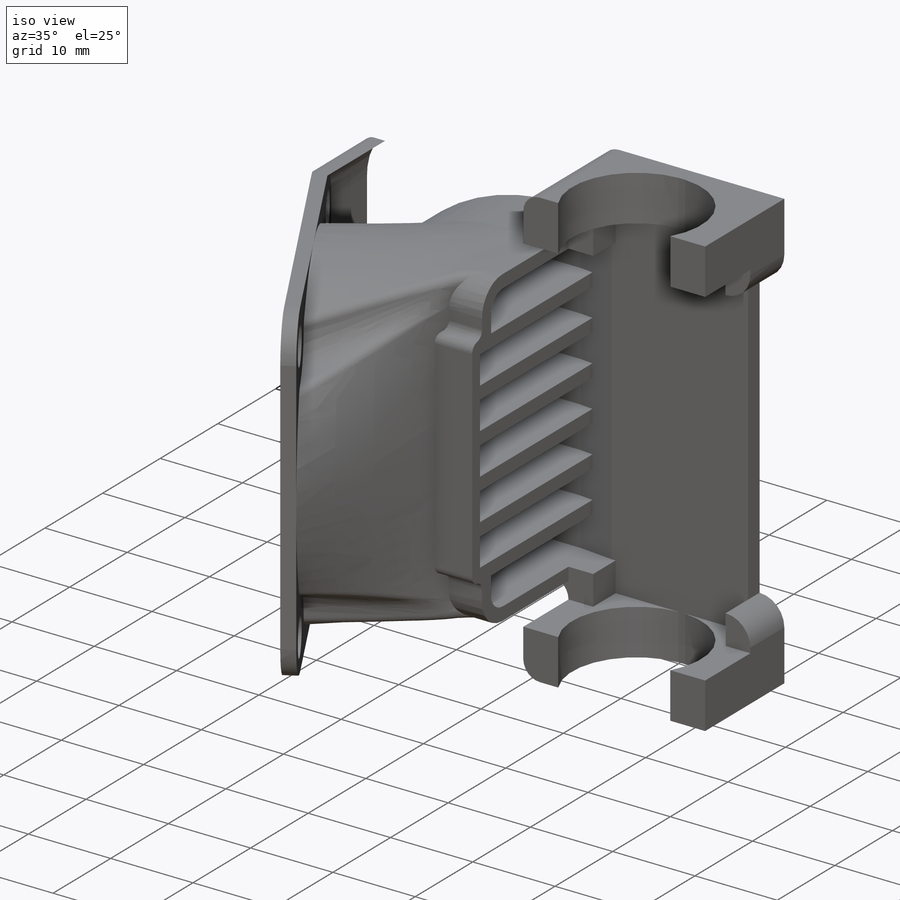
[diagram: iso view]
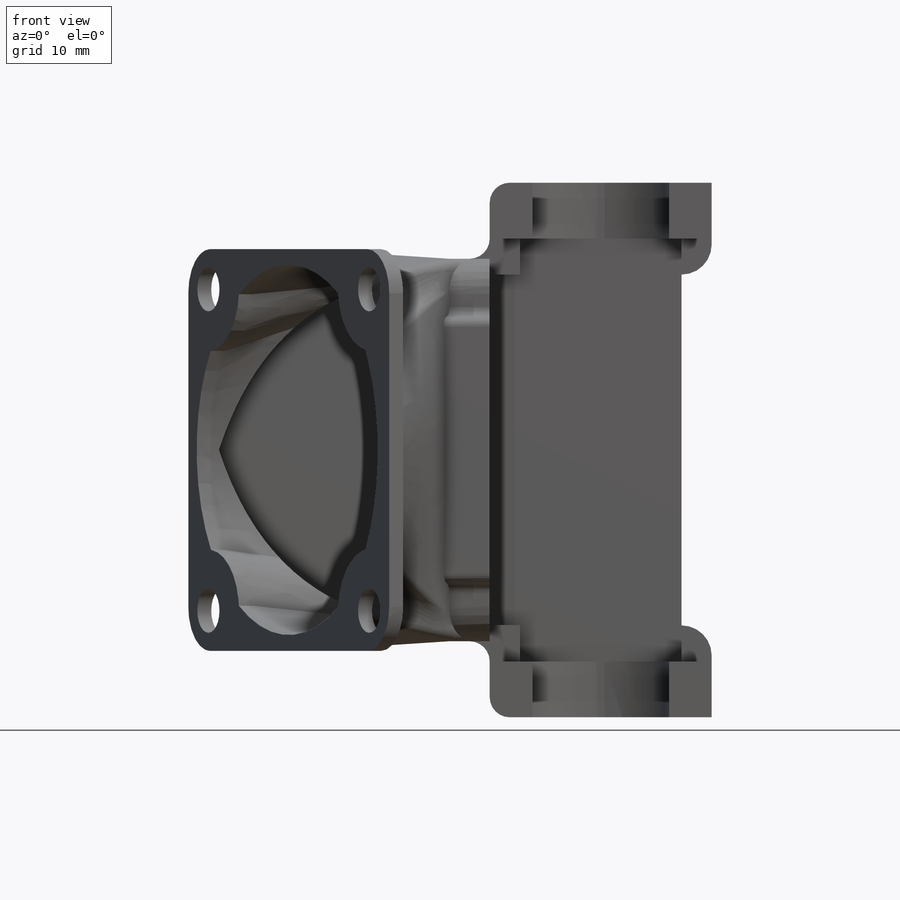
[diagram: front view]
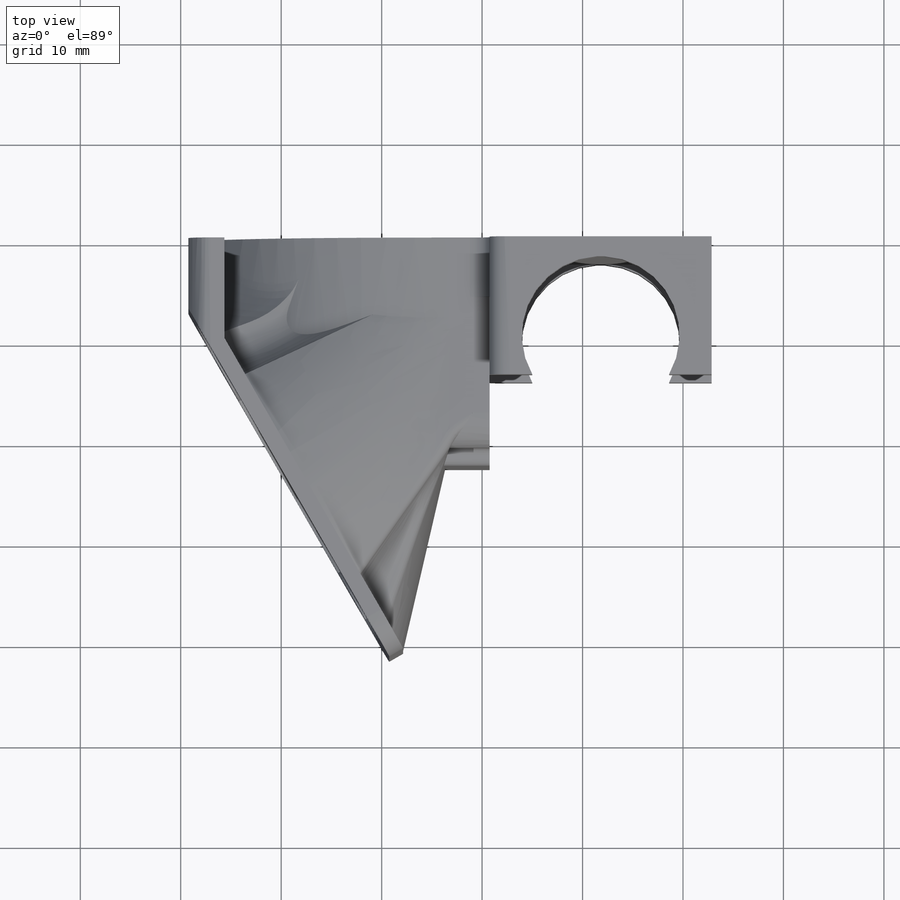
[diagram: top view]
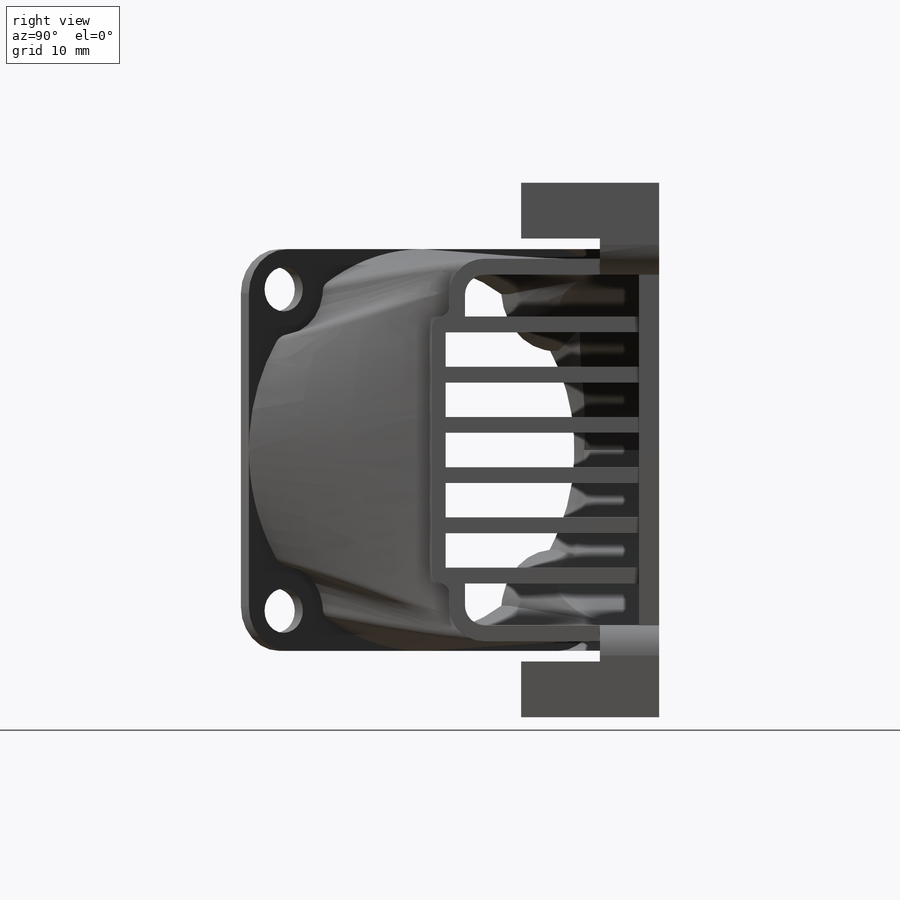
[diagram: right view]
SOLIDWORKS PART (.sldprt)
format: sldprt  version: not decoded by parser v0  size: 1,718,272 bytes
history: native  units: mm
features: sketch x23, extrude x12, fillet x11, cut_extrude x7, plane x2, material x1, shell x1, chamfer x1 (+11 scaffold rows collapsed)
feature tree (69):
  scaffold x11  (default folders/planes/origin — collapsed)
  material  "Material <not specified>"
  sketch  "Sketch1"  dims[D1=53.22mm D2=~56.98675mm]
  extrude  "Boss-Extrude1"  Depth=2mm
  sketch  "Sketch3"  dims[D1=0.0mm D2=0.0mm D3=11.75mm]
  extrude  "Boss-Extrude2"  Depth=5.55mm
  sketch  "Sketch4"
  extrude  "Boss-Extrude3"  Depth=5.55mm
  sketch  "Sketch6"  dims[c1.D1=~5.790595mm c1.D3=3.6mm c2.D1=3.0mm c2.D2=3.0mm]
  extrude  "Boss-Extrude5"  Depth=3.9mm
  plane  "Plane1"
  sketch  "Sketch15"
  sketch  "Sketch16"  dims[D1=0.0mm]
  extrude  "Boss-Extrude6"  Depth=1.598mm
  sketch  "Sketch21"  dims[D1=0.0mm]
  cut_extrude  "Cut-Extrude4"  [1 undecoded]
  sketch  "Sketch17"  dims[c1.D1=1.02mm c1.D2=1.02mm c2.D1=1.5776mm c2.D2=1.5776mm c3.D1=1.02mm c3.D2=1.02mm c3.D3=1.5776mm c3.D4=1.5776mm]
  extrude  "Boss-Extrude8"  Depth=4mm
  sketch  "Sketch18"  dims[D1=~4.338845mm]
  sketch  "Sketch22"  dims[D1=0.0mm]
  sketch  "Sketch25"  dims[D1=0.0mm]
  cut_extrude  "Cut-Extrude6"  [1 undecoded]
  sketch  "Sketch29"  dims[c1.D1=0.0mm c1.D2=0.0mm c2.D1=0.0mm]
  extrude  "Boss-Extrude12"  Depth=14mm
  shell  "Shell8"  Thickness=1.5776mm
  sketch  "Sketch31"  dims[D1=~2.622309mm]
  sketch  "Sketch34"
  cut_extrude  "Cut-Extrude12"  [1 undecoded]
  sketch  "Sketch35"  dims[D1=0.0mm D2=1.5776mm]
  extrude  "Boss-Extrude13"  [1 undecoded]
  sketch  "Sketch36"  dims[D1=0.0mm]
  cut_extrude  "Cut-Extrude13"  Depth=6mm
  fillet  "Fillet5"  Radius=5mm
  sketch  "Sketch37"  dims[D1=0.0mm]
  extrude  "Boss-Extrude14"  [1 undecoded]
  sketch  "Sketch38"  dims[D1=0.0mm D2=0.0mm D3=0.0mm]
  extrude  "Boss-Extrude15"  Depth=6mm
  fillet  "Fillet7"  Radius=2mm
  fillet  "Fillet8"  Radius=1.55mm
  fillet  "Fillet9"  Radius=2mm
  fillet  "Fillet10"  Radius=2mm
  fillet  "Fillet11"  Radius=3.5mm
  fillet  "Fillet12"  Radius=1mm
  fillet  "Fillet13"  Radius=1mm
  chamfer  "Chamfer2"  Distance=6.5mm Angle=6deg
  sketch  "Sketch39"  dims[c1.D1=30.92mm c2.D1=90.0deg c3.D1=30.92mm c3.D3=~5.454334mm c4.D1=4.96mm c4.D2=4.96mm c4.D3=5.0mm c4.D4=5.0mm c4.D5=5.0mm c4.D6=5.0mm c4.D7=6.0mm c4.D8=0.7888mm c4.D9=0.7888mm]
  extrude  "Boss-Extrude16"  Depth=10mm
  plane  "Plane2"  Offset=40mm
  sketch  "Sketch41"  dims[D1=0.0mm]
  cut_extrude  "Cut-Extrude14"  Depth=19mm
  sketch  "Sketch42"  dims[D1=0.0mm]
  cut_extrude  "Cut-Extrude15"  [1 undecoded]
  fillet  "Fillet14"  Radius=3mm
  sketch  "Sketch43"  dims[D1=1.7mm]
  extrude  "Boss-Extrude17"  [1 undecoded]
  fillet  "Fillet15"  Radius=1mm
  fillet  "Fillet16"  Radius=1mm
  sketch  "Sketch44"  dims[D1=0.0mm D2=1.9176mm]
  cut_extrude  "Cut-Extrude16"  Depth=10mm
decode coverage: 45 of 55 modeling features carry decoded parameters
note: ~ marks probable driven/reference dimensions
note: 7 parameter values undecoded
summary: no parameter record found for 7 features
note: suppression state not decoded; provenance and decode notes live in map.json
